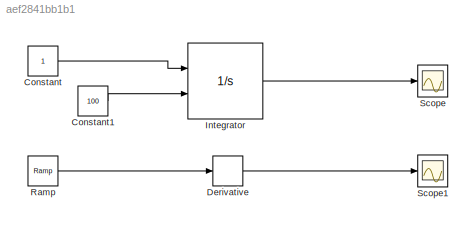
MODEL slx_aef2841bb1b1
KIND model
BLOCK [Constant] Constant
BLOCK [Constant] Constant1
  Value = 100
BLOCK [Derivative] Derivative
BLOCK [Integrator] Integrator
  InitialConditionSource = external
  Ports = [2, 1]
BLOCK [Reference] Ramp  REF=simulink/Sources/Ramp
  Ports = [0, 1]
  SourceBlock = simulink/Sources/Ramp
  SourceType = Ramp
  VectorParams1D = on
  X0 = 0
  slope = 1
  start = 0
BLOCK [Scope] Scope
  DataFormat = StructureWithTime
  Floating = off
  NumInputPorts = 1
  Ports = [1]
  SampleTime = 0
  ShowLegends = off
BLOCK [Scope] Scope1
  DataFormat = StructureWithTime
  Floating = off
  NumInputPorts = 1
  Ports = [1]
  SampleTime = 0
  SaveName = ScopeData1
  ShowLegends = off
LINE Constant1:1 -> Integrator:2
LINE Constant:1 -> Integrator:1
LINE Derivative:1 -> Scope1:1
LINE Integrator:1 -> Scope:1
LINE Ramp:1 -> Derivative:1
